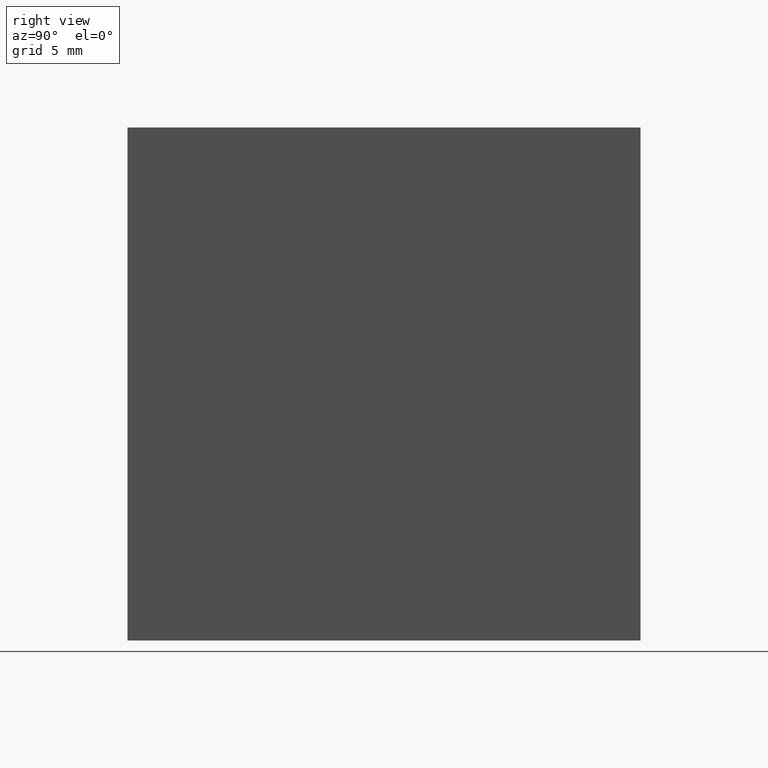
[diagram: clean part render]
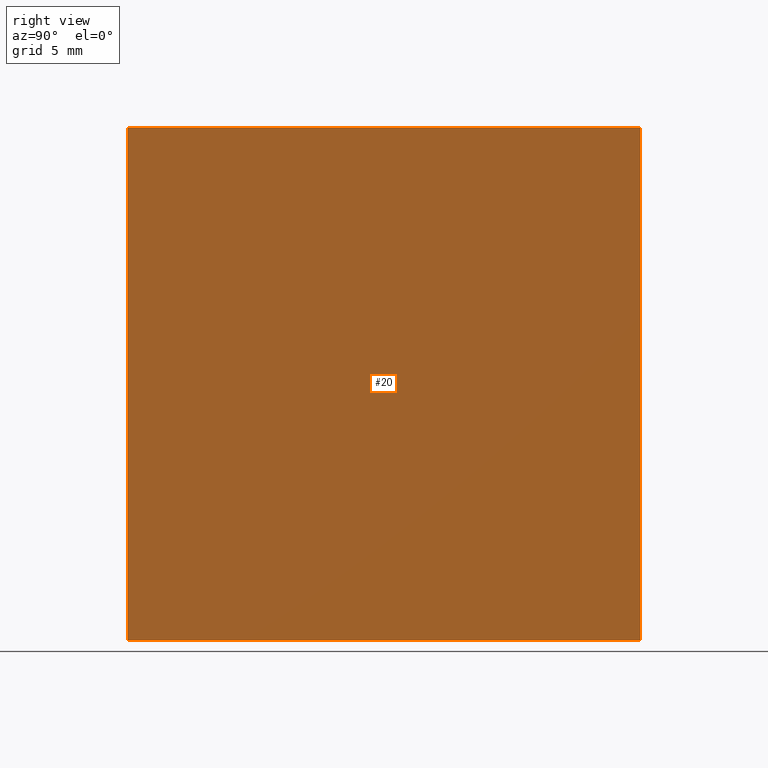
[diagram: same view with one face highlighted and labeled with its STEP entity id]
A machine part, right view. The second image highlights one B-rep face of the part: STEP entity #20.
In plain terms, the highlighted planar face has unit normal (-1, 0, 0).
Its self-contained STEP definition (entity closure, byte-faithful):
#3 = VECTOR ( 'NONE', #100, 1000.000000000000000 ) ;
#8 = LINE ( 'NONE', #183, #63 ) ;
#11 = CARTESIAN_POINT ( 'NONE',  ( -69.54479566514874000, 20.00000000000000000, -10.00000000000000400 ) ) ;
#20 = ADVANCED_FACE ( 'NONE', ( #188 ), #48, .F. ) ;
#26 = CARTESIAN_POINT ( 'NONE',  ( -69.54479566514874000, 0.0000000000000000000, 10.00000000000000000 ) ) ;
#29 = ORIENTED_EDGE ( 'NONE', *, *, #134, .T. ) ;
#45 = DIRECTION ( 'NONE',  ( -1.000000000000000000, 0.0000000000000000000, 0.0000000000000000000 ) ) ;
#48 = PLANE ( 'NONE',  #187 ) ;
#51 = DIRECTION ( 'NONE',  ( 0.0000000000000000000, 0.0000000000000000000, 1.000000000000000000 ) ) ;
#56 = CARTESIAN_POINT ( 'NONE',  ( -69.54479566514874000, 20.00000000000000000, -10.00000000000000400 ) ) ;
#63 = VECTOR ( 'NONE', #110, 1000.000000000000000 ) ;
#69 = LINE ( 'NONE', #194, #186 ) ;
#79 = VERTEX_POINT ( 'NONE', #92 ) ;
#83 = CARTESIAN_POINT ( 'NONE',  ( -69.54479566514874000, 0.0000000000000000000, -10.00000000000000400 ) ) ;
#85 = EDGE_CURVE ( 'NONE', #79, #190, #162, .T. ) ;
#89 = EDGE_LOOP ( 'NONE', ( #29, #167, #132, #96 ) ) ;
#92 = CARTESIAN_POINT ( 'NONE',  ( -69.54479566514874000, 20.00000000000000000, 10.00000000000000000 ) ) ;
#96 = ORIENTED_EDGE ( 'NONE', *, *, #191, .T. ) ;
#100 = DIRECTION ( 'NONE',  ( -0.0000000000000000000, -0.0000000000000000000, -1.000000000000000000 ) ) ;
#104 = LINE ( 'NONE', #196, #176 ) ;
#110 = DIRECTION ( 'NONE',  ( -0.0000000000000000000, -1.000000000000000000, -0.0000000000000000000 ) ) ;
#113 = VERTEX_POINT ( 'NONE', #26 ) ;
#114 = EDGE_CURVE ( 'NONE', #190, #157, #104, .T. ) ;
#132 = ORIENTED_EDGE ( 'NONE', *, *, #85, .F. ) ;
#134 = EDGE_CURVE ( 'NONE', #113, #157, #69, .T. ) ;
#157 = VERTEX_POINT ( 'NONE', #83 ) ;
#162 = LINE ( 'NONE', #56, #3 ) ;
#167 = ORIENTED_EDGE ( 'NONE', *, *, #114, .F. ) ;
#176 = VECTOR ( 'NONE', #198, 1000.000000000000000 ) ;
#183 = CARTESIAN_POINT ( 'NONE',  ( -69.54479566514874000, 20.00000000000000000, 10.00000000000000000 ) ) ;
#185 = CARTESIAN_POINT ( 'NONE',  ( -69.54479566514874000, 20.00000000000000000, -10.00000000000000400 ) ) ;
#186 = VECTOR ( 'NONE', #202, 1000.000000000000000 ) ;
#187 = AXIS2_PLACEMENT_3D ( 'NONE', #11, #45, #51 ) ;
#188 = FACE_OUTER_BOUND ( 'NONE', #89, .T. ) ;
#190 = VERTEX_POINT ( 'NONE', #185 ) ;
#191 = EDGE_CURVE ( 'NONE', #79, #113, #8, .T. ) ;
#194 = CARTESIAN_POINT ( 'NONE',  ( -69.54479566514874000, 0.0000000000000000000, -10.00000000000000400 ) ) ;
#196 = CARTESIAN_POINT ( 'NONE',  ( -69.54479566514874000, 20.00000000000000000, -10.00000000000000400 ) ) ;
#198 = DIRECTION ( 'NONE',  ( -0.0000000000000000000, -1.000000000000000000, -0.0000000000000000000 ) ) ;
#202 = DIRECTION ( 'NONE',  ( -0.0000000000000000000, -0.0000000000000000000, -1.000000000000000000 ) ) ;